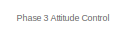
[diagram: root canvas - part 1/3, top center region]
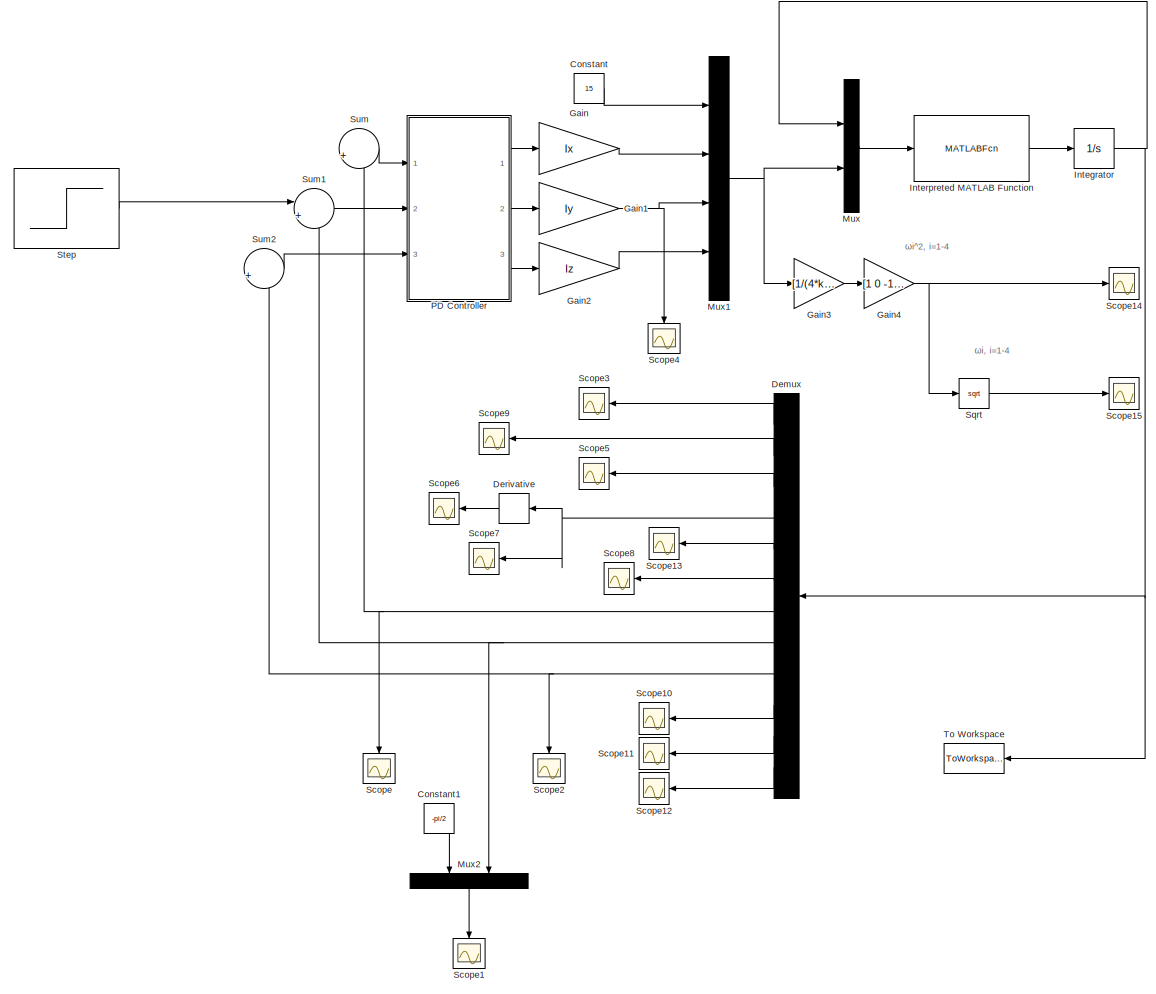
[diagram: root canvas - part 2/3, right side, full height]
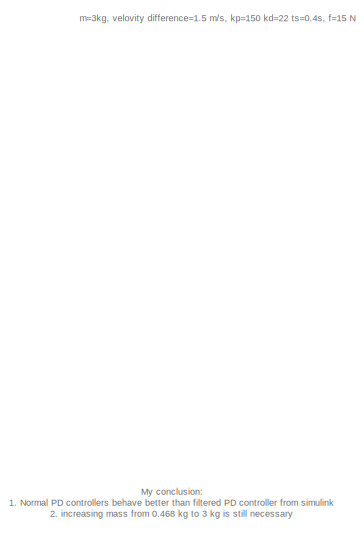
[diagram: root canvas - part 3/3, middle left region]
MODEL slx_5a715981d0c7
KIND model
CONFIG AbsTol = auto
CONFIG EnableMultiTasking = off
CONFIG FixedStep = auto
CONFIG MaxStep = auto
CONFIG MinStep = auto
CONFIG RelTol = 1e-6
CONFIG SampleTimeConstraint = Unconstrained
CONFIG Solver = VariableStepAuto
CONFIG SolverName = VariableStepAuto
CONFIG StartTime = 0.0
CONFIG StopTime = 0.5
BLOCK [Constant] Constant
  Value = 15
BLOCK [Constant] Constant1
  Value = -pi/2
BLOCK [Demux] Demux
  DisplayOption = bar
  Outputs = 12
  Ports = [1, 12]
BLOCK [Derivative] Derivative
BLOCK [Gain] Gain
  Gain = Ix
  OutDataTypeStr = Inherit: Inherit via internal rule
  ParamDataTypeStr = Inherit: Inherit via internal rule
  SaturateOnIntegerOverflow = off
BLOCK [Gain] Gain1
  Gain = Iy
  OutDataTypeStr = Inherit: Inherit via internal rule
  ParamDataTypeStr = Inherit: Inherit via internal rule
  SaturateOnIntegerOverflow = off
BLOCK [Gain] Gain2
  Gain = Iz
  OutDataTypeStr = Inherit: Inherit via internal rule
  ParamDataTypeStr = Inherit: Inherit via internal rule
  SaturateOnIntegerOverflow = off
BLOCK [Gain] Gain3
  Gain = [1/(4*k) 0 0 0;0 1/(2*l*k) 0 0;0 0 1/(2*l*k) 0;0 0 0 1/(4*c)]
  Multiplication = Matrix(K*u) (u vector)
  OutDataTypeStr = Inherit: Inherit via internal rule
  ParamDataTypeStr = Inherit: Inherit via internal rule
  SaturateOnIntegerOverflow = off
BLOCK [Gain] Gain4
  Gain = [1 0 -1 1;1 1 0 -1;1 0 1 1;1 -1 0 -1]
  Multiplication = Matrix(K*u) (u vector)
  OutDataTypeStr = Inherit: Inherit via internal rule
  ParamDataTypeStr = Inherit: Inherit via internal rule
  SaturateOnIntegerOverflow = off
BLOCK [Integrator] Integrator
  InitialCondition = x_phase2(end,:)
  Ports = [1, 1]
BLOCK [MATLABFcn] Interpreted MATLAB Function
  MATLABFcn = Fcn_Get_x_dot
  Ports = [1, 1]
BLOCK [Mux] Mux
  DisplayOption = bar
  Inputs = 2
  Ports = [2, 1]
BLOCK [Mux] Mux1
  DisplayOption = bar
  Ports = [4, 1]
BLOCK [Mux] Mux2
  DisplayOption = bar
  Inputs = 2
  Ports = [2, 1]
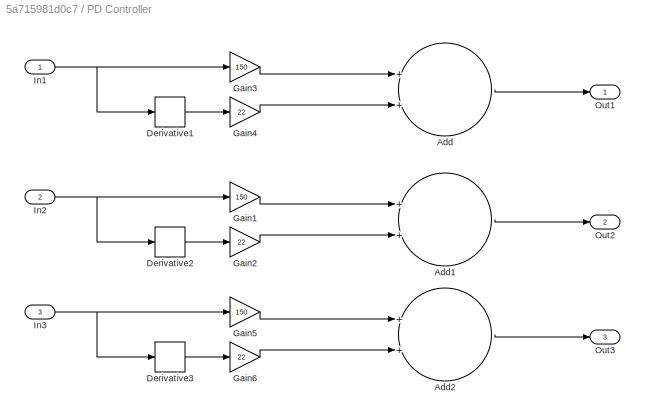
BLOCK [SubSystem] PD Controller
  Ports = [3, 3]
  RequestExecContextInheritance = off
  Variant = off
BLOCK [Sum] PD Controller/Add
  InputSameDT = off
  OutDataTypeStr = Inherit: Inherit via internal rule
  Ports = [2, 1]
  SaturateOnIntegerOverflow = off
BLOCK [Sum] PD Controller/Add1
  InputSameDT = off
  OutDataTypeStr = Inherit: Inherit via internal rule
  Ports = [2, 1]
  SaturateOnIntegerOverflow = off
BLOCK [Sum] PD Controller/Add2
  InputSameDT = off
  OutDataTypeStr = Inherit: Inherit via internal rule
  Ports = [2, 1]
  SaturateOnIntegerOverflow = off
BLOCK [Derivative] PD Controller/Derivative1
BLOCK [Derivative] PD Controller/Derivative2
BLOCK [Derivative] PD Controller/Derivative3
BLOCK [Gain] PD Controller/Gain1
  Gain = 150
  OutDataTypeStr = Inherit: Inherit via internal rule
  ParamDataTypeStr = Inherit: Inherit via internal rule
  SaturateOnIntegerOverflow = off
BLOCK [Gain] PD Controller/Gain2
  Gain = 22
  OutDataTypeStr = Inherit: Inherit via internal rule
  ParamDataTypeStr = Inherit: Inherit via internal rule
  SaturateOnIntegerOverflow = off
BLOCK [Gain] PD Controller/Gain3
  Gain = 150
  OutDataTypeStr = Inherit: Inherit via internal rule
  ParamDataTypeStr = Inherit: Inherit via internal rule
  SaturateOnIntegerOverflow = off
BLOCK [Gain] PD Controller/Gain4
  Gain = 22
  OutDataTypeStr = Inherit: Inherit via internal rule
  ParamDataTypeStr = Inherit: Inherit via internal rule
  SaturateOnIntegerOverflow = off
BLOCK [Gain] PD Controller/Gain5
  Gain = 150
  OutDataTypeStr = Inherit: Inherit via internal rule
  ParamDataTypeStr = Inherit: Inherit via internal rule
  SaturateOnIntegerOverflow = off
BLOCK [Gain] PD Controller/Gain6
  Gain = 22
  OutDataTypeStr = Inherit: Inherit via internal rule
  ParamDataTypeStr = Inherit: Inherit via internal rule
  SaturateOnIntegerOverflow = off
BLOCK [Inport] PD Controller/In1
  IconDisplay = Port number
BLOCK [Inport] PD Controller/In2
  IconDisplay = Port number
  Port = 2
BLOCK [Inport] PD Controller/In3
  IconDisplay = Port number
  Port = 3
BLOCK [Outport] PD Controller/Out1
  IconDisplay = Port number
BLOCK [Outport] PD Controller/Out2
  IconDisplay = Port number
  Port = 2
BLOCK [Outport] PD Controller/Out3
  IconDisplay = Port number
  Port = 3
BLOCK [Scope] Scope
  NumInputPorts = 1
  Ports = [1]
  ScopeSpecificationString = Simulink.scopes.TimeScopeBlockCfg('CurrentConfiguration', extmgr.ConfigurationSet(extmgr.Configuration('Core','General UI',true),extmgr.Configuration('Core','Source UI',true),extmgr.Configuration('Sources','WiredSimulink',true),extmgr.Configuration('Visuals','Time Domain',true,'SerializedDisplays',{struct('MinYLimReal','-1.00000','MaxYLimReal','1.00000','YLabelReal','','MinYLimMag','0.00000','MaxY...<+1327ch>
BLOCK [Scope] Scope1
  NumInputPorts = 1
  Ports = [1]
  ScopeSpecificationString = Simulink.scopes.TimeScopeBlockCfg('CurrentConfiguration', extmgr.ConfigurationSet(extmgr.Configuration('Core','General UI',true),extmgr.Configuration('Core','Source UI',true),extmgr.Configuration('Sources','WiredSimulink',true,'DataLoggingVariableName','ScopeData1'),extmgr.Configuration('Visuals','Time Domain',true,'SerializedDisplays',{struct('MinYLimReal','-1.76715','MaxYLimReal','0.19635','YLab...<+1455ch>
BLOCK [Scope] Scope10
  NumInputPorts = 1
  Ports = [1]
  ScopeSpecificationString = Simulink.scopes.TimeScopeBlockCfg('CurrentConfiguration', extmgr.ConfigurationSet(extmgr.Configuration('Core','General UI',true),extmgr.Configuration('Core','Source UI',true),extmgr.Configuration('Sources','WiredSimulink',true,'DataLoggingVariableName','ScopeData2'),extmgr.Configuration('Visuals','Time Domain',true,'SerializedDisplays',{struct('MinYLimReal','-1.00000','MaxYLimReal','1.00000','YLab...<+1367ch>
BLOCK [Scope] Scope11
  NumInputPorts = 1
  Ports = [1]
  ScopeSpecificationString = Simulink.scopes.TimeScopeBlockCfg('CurrentConfiguration', extmgr.ConfigurationSet(extmgr.Configuration('Core','General UI',true),extmgr.Configuration('Core','Source UI',true),extmgr.Configuration('Sources','WiredSimulink',true,'DataLoggingVariableName','ScopeData3'),extmgr.Configuration('Visuals','Time Domain',true,'SerializedDisplays',{struct('MinYLimReal','-17.36562','MaxYLimReal','1.92951','YLa...<+1415ch>
BLOCK [Scope] Scope12
  NumInputPorts = 1
  Ports = [1]
  ScopeSpecificationString = Simulink.scopes.TimeScopeBlockCfg('CurrentConfiguration', extmgr.ConfigurationSet(extmgr.Configuration('Core','General UI',true),extmgr.Configuration('Core','Source UI',true),extmgr.Configuration('Sources','WiredSimulink',true,'DataLoggingVariableName','ScopeData4'),extmgr.Configuration('Visuals','Time Domain',true,'SerializedDisplays',{struct('MinYLimReal','-1.00000','MaxYLimReal','1.00000','YLab...<+1392ch>
BLOCK [Scope] Scope13
  NumInputPorts = 1
  Ports = [1]
  ScopeSpecificationString = Simulink.scopes.TimeScopeBlockCfg('CurrentConfiguration', extmgr.ConfigurationSet(extmgr.Configuration('Core','General UI',true),extmgr.Configuration('Core','Source UI',true),extmgr.Configuration('Sources','WiredSimulink',true,'DataLoggingVariableName','ScopeData1'),extmgr.Configuration('Visuals','Time Domain',true,'SerializedDisplays',{struct('MinYLimReal','-1.00000','MaxYLimReal','1.00000','YLab...<+1439ch>
BLOCK [Scope] Scope14
  NumInputPorts = 1
  Ports = [1]
  ScopeSpecificationString = Simulink.scopes.TimeScopeBlockCfg('CurrentConfiguration', extmgr.ConfigurationSet(extmgr.Configuration('Core','General UI',true),extmgr.Configuration('Core','Source UI',true),extmgr.Configuration('Sources','WiredSimulink',true,'DataLoggingVariableName','ScopeData1'),extmgr.Configuration('Visuals','Time Domain',true,'SerializedDisplays',{struct('MinYLimReal','191841.0404','MaxYLimReal','2324937.483...<+1432ch>
BLOCK [Scope] Scope15
  NumInputPorts = 1
  Ports = [1]
  ScopeSpecificationString = Simulink.scopes.TimeScopeBlockCfg('CurrentConfiguration', extmgr.ConfigurationSet(extmgr.Configuration('Core','General UI',true),extmgr.Configuration('Core','Source UI',true),extmgr.Configuration('Sources','WiredSimulink',true,'DataLoggingVariableName','ScopeData1'),extmgr.Configuration('Visuals','Time Domain',true,'SerializedDisplays',{struct('MinYLimReal','534.43578','MaxYLimReal','1555.22283','...<+1408ch>
BLOCK [Scope] Scope2
  NumInputPorts = 1
  Ports = [1]
  ScopeSpecificationString = Simulink.scopes.TimeScopeBlockCfg('CurrentConfiguration', extmgr.ConfigurationSet(extmgr.Configuration('Core','General UI',true),extmgr.Configuration('Core','Source UI',true),extmgr.Configuration('Sources','WiredSimulink',true,'DataLoggingVariableName','ScopeData2','DataLoggingLimitDataPoints',true,'DataLoggingSaveFormat','Array','DataLoggingDecimation','1','DataLoggingDecimateData',true),extmgr.C...<+1491ch>
BLOCK [Scope] Scope3
  NumInputPorts = 1
  Ports = [1]
  ScopeSpecificationString = Simulink.scopes.TimeScopeBlockCfg('CurrentConfiguration', extmgr.ConfigurationSet(extmgr.Configuration('Core','General UI',true),extmgr.Configuration('Core','Source UI',true),extmgr.Configuration('Sources','WiredSimulink',true,'DataLoggingVariableName','ScopeData1'),extmgr.Configuration('Visuals','Time Domain',true,'SerializedDisplays',{struct('MinYLimReal','-0.41687','MaxYLimReal','0.04634','YLab...<+1410ch>
BLOCK [Scope] Scope4
  NumInputPorts = 1
  Ports = [1]
  ScopeSpecificationString = Simulink.scopes.TimeScopeBlockCfg('CurrentConfiguration', extmgr.ConfigurationSet(extmgr.Configuration('Core','General UI',true),extmgr.Configuration('Core','Source UI',true),extmgr.Configuration('Sources','WiredSimulink',true,'DataLoggingVariableName','ScopeData1'),extmgr.Configuration('Visuals','Time Domain',true,'SerializedDisplays',{struct('MinYLimReal','-0.4023','MaxYLimReal','1.316','YLabelR...<+1429ch>
BLOCK [Scope] Scope5
  NumInputPorts = 1
  Ports = [1]
  ScopeSpecificationString = Simulink.scopes.TimeScopeBlockCfg('CurrentConfiguration', extmgr.ConfigurationSet(extmgr.Configuration('Core','General UI',true),extmgr.Configuration('Core','Source UI',true),extmgr.Configuration('Sources','WiredSimulink',true,'DataLoggingVariableName','ScopeData5'),extmgr.Configuration('Visuals','Time Domain',true,'SerializedDisplays',{struct('MinYLimReal','-0.37439','MaxYLimReal','0.70827','YLab...<+1439ch>
BLOCK [Scope] Scope6
  NumInputPorts = 1
  Ports = [1]
  ScopeSpecificationString = Simulink.scopes.TimeScopeBlockCfg('CurrentConfiguration', extmgr.ConfigurationSet(extmgr.Configuration('Core','General UI',true),extmgr.Configuration('Core','Source UI',true),extmgr.Configuration('Sources','WiredSimulink',true,'DataLoggingVariableName','ScopeData1'),extmgr.Configuration('Visuals','Time Domain',true,'SerializedDisplays',{struct('MinYLimReal','-49.89427','MaxYLimReal','49.80116','YL...<+1375ch>
BLOCK [Scope] Scope7
  NumInputPorts = 1
  Ports = [1]
  ScopeSpecificationString = Simulink.scopes.TimeScopeBlockCfg('CurrentConfiguration', extmgr.ConfigurationSet(extmgr.Configuration('Core','General UI',true),extmgr.Configuration('Core','Source UI',true),extmgr.Configuration('Sources','WiredSimulink',true,'DataLoggingVariableName','ScopeData3'),extmgr.Configuration('Visuals','Time Domain',true,'SerializedDisplays',{struct('MinYLimReal','-0.73091','MaxYLimReal','1.74788','YLab...<+1443ch>
BLOCK [Scope] Scope8
  NumInputPorts = 1
  Ports = [1]
  ScopeSpecificationString = Simulink.scopes.TimeScopeBlockCfg('CurrentConfiguration', extmgr.ConfigurationSet(extmgr.Configuration('Core','General UI',true),extmgr.Configuration('Core','Source UI',true),extmgr.Configuration('Sources','WiredSimulink',true,'DataLoggingVariableName','ScopeData8'),extmgr.Configuration('Visuals','Time Domain',true,'SerializedDisplays',{struct('MinYLimReal','-4.4662','MaxYLimReal','0.49624','YLabe...<+1435ch>
BLOCK [Scope] Scope9
  NumInputPorts = 1
  Ports = [1]
  ScopeSpecificationString = Simulink.scopes.TimeScopeBlockCfg('CurrentConfiguration', extmgr.ConfigurationSet(extmgr.Configuration('Core','General UI',true),extmgr.Configuration('Core','Source UI',true),extmgr.Configuration('Sources','WiredSimulink',true,'DataLoggingVariableName','ScopeData1'),extmgr.Configuration('Visuals','Time Domain',true,'SerializedDisplays',{struct('MinYLimReal','-1.00000','MaxYLimReal','1.00000','YLab...<+1366ch>
BLOCK [Sqrt] Sqrt
BLOCK [Step] Step
  After = -pi/2
  SampleTime = 0
  Time = 0
BLOCK [Sum] Sum
  IconShape = round
  InputSameDT = off
  Inputs = |+-
  OutDataTypeStr = Inherit: Inherit via internal rule
  Ports = [2, 1]
  SaturateOnIntegerOverflow = off
BLOCK [Sum] Sum1
  IconShape = round
  InputSameDT = off
  Inputs = |+-
  OutDataTypeStr = Inherit: Inherit via internal rule
  Ports = [2, 1]
  SaturateOnIntegerOverflow = off
BLOCK [Sum] Sum2
  IconShape = round
  InputSameDT = off
  Inputs = |+-
  OutDataTypeStr = Inherit: Inherit via internal rule
  Ports = [2, 1]
  SaturateOnIntegerOverflow = off
BLOCK [ToWorkspace] To Workspace
  FixptAsFi = on
  MaxDataPoints = inf
  Ports = [1]
  SampleTime = 0.01
  Save2DSignal = 3-D array (concatenate along third dimension)
  VariableName = x_phase3
ANNOTATION (root): Phase 3 Attitude Control
ANNOTATION (root): m=3kg, velovity difference=1.5 m/s, kp=150 kd=22 ts=0.4s, f=15 N
ANNOTATION (root): My conclusion: 1. Normal PD controllers behave better than filtered PD controller from simulink 2. increasing mass from 0.468 kg to 3 kg is still necessary
ANNOTATION (root): ωi, i=1-4
ANNOTATION (root): ωi^2, i=1-4
LINE Constant1:1 -> Mux2:1
LINE Constant:1 -> Mux1:1
LINE Demux:1 -> Scope3:1
LINE Demux:10 -> Scope10:1
LINE Demux:11 -> Scope11:1
LINE Demux:12 -> Scope12:1
LINE Demux:2 -> Scope9:1
LINE Demux:3 -> Scope5:1
NET Demux:4 -> Derivative:1, Scope7:1
LINE Demux:5 -> Scope13:1
LINE Demux:6 -> Scope8:1
NET Demux:7 -> Scope:1, Sum:2
NET Demux:8 -> Mux2:2, Sum1:2
NET Demux:9 -> Scope2:1, Sum2:2
LINE Derivative:1 -> Scope6:1
NET Gain1:1 -> Mux1:3, Scope4:1
LINE Gain2:1 -> Mux1:4
LINE Gain3:1 -> Gain4:1
NET Gain4:1 -> Scope14:1, Sqrt:1
LINE Gain:1 -> Mux1:2
NET Integrator:1 -> Demux:1, Mux:1, To Workspace:1
LINE Interpreted MATLAB Function:1 -> Integrator:1
NET Mux1:1 -> Gain3:1, Mux:2
LINE Mux2:1 -> Scope1:1
LINE Mux:1 -> Interpreted MATLAB Function:1
LINE PD Controller/Add1:1 -> PD Controller/Out2:1
LINE PD Controller/Add2:1 -> PD Controller/Out3:1
LINE PD Controller/Add:1 -> PD Controller/Out1:1
LINE PD Controller/Derivative1:1 -> PD Controller/Gain4:1
LINE PD Controller/Derivative2:1 -> PD Controller/Gain2:1
LINE PD Controller/Derivative3:1 -> PD Controller/Gain6:1
LINE PD Controller/Gain1:1 -> PD Controller/Add1:1
LINE PD Controller/Gain2:1 -> PD Controller/Add1:2
LINE PD Controller/Gain3:1 -> PD Controller/Add:1
LINE PD Controller/Gain4:1 -> PD Controller/Add:2
LINE PD Controller/Gain5:1 -> PD Controller/Add2:1
LINE PD Controller/Gain6:1 -> PD Controller/Add2:2
NET PD Controller/In1:1 -> PD Controller/Derivative1:1, PD Controller/Gain3:1
NET PD Controller/In2:1 -> PD Controller/Derivative2:1, PD Controller/Gain1:1
NET PD Controller/In3:1 -> PD Controller/Derivative3:1, PD Controller/Gain5:1
LINE PD Controller:1 -> Gain:1
LINE PD Controller:2 -> Gain1:1
LINE PD Controller:3 -> Gain2:1
LINE Sqrt:1 -> Scope15:1
LINE Step:1 -> Sum1:1
LINE Sum1:1 -> PD Controller:2
LINE Sum2:1 -> PD Controller:3
LINE Sum:1 -> PD Controller:1
note: NET lines group one-source signal fan-out (src -> all destinations, sorted); 1:1 wires keep LINE
